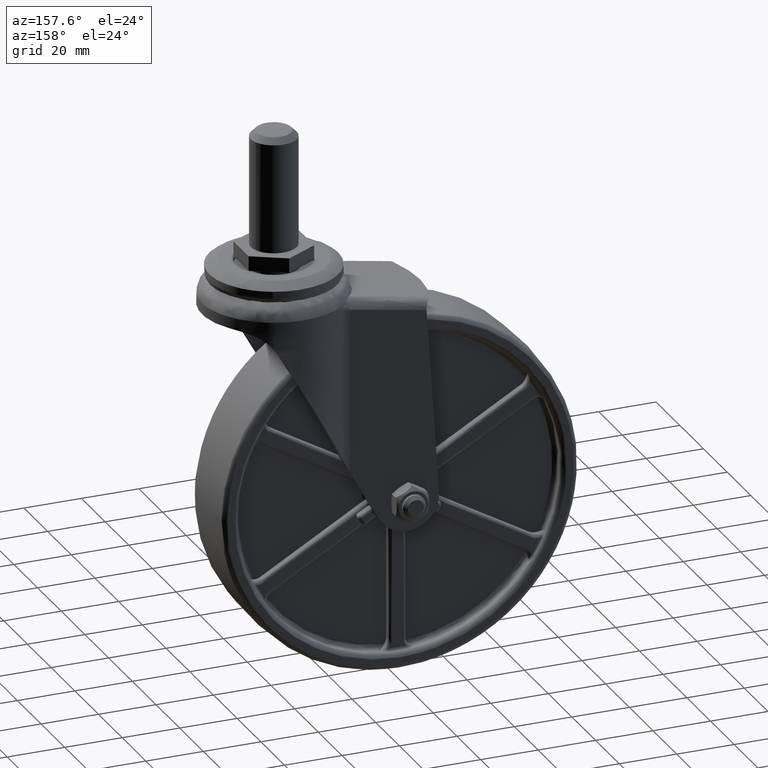
[diagram: clean part render]
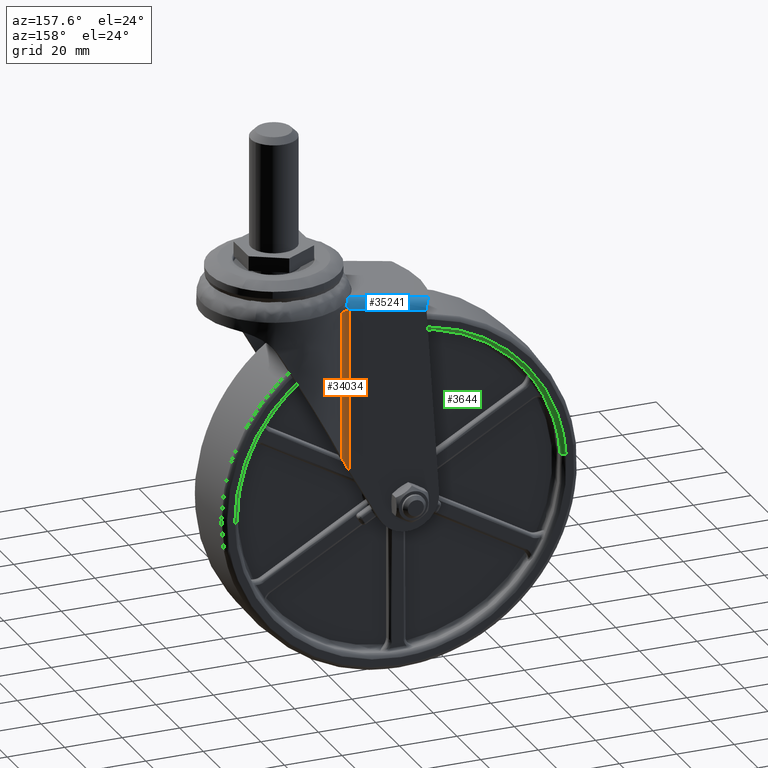
[diagram: same view with three faces highlighted in distinct colors, each labeled with its STEP entity id]
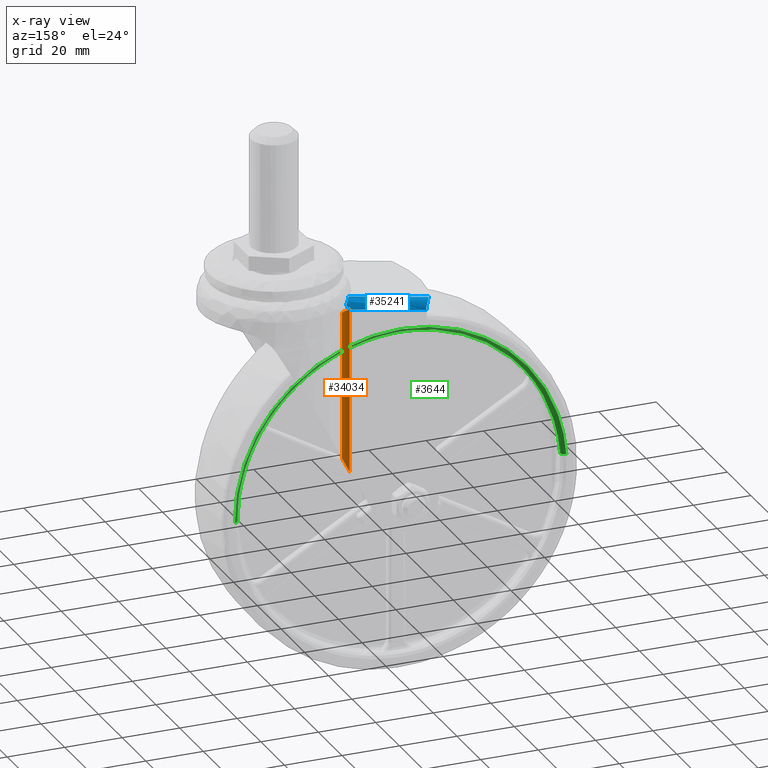
[diagram: x-ray of the same camera — body ghosted, the three highlighted faces saturated]
A machine part, auxiliary view with three faces highlighted in distinct colors.
The next image is the same camera in x-ray (body ghosted, the three faces saturated) — at least one of them is partly hidden behind the body in this view.
Their STEP definitions:

[orange] entity #34034 — the highlighted face is a freeform B-spline surface patch.
#33971=CARTESIAN_POINT('',(20.102633358060050,18.299990000000001,70.409649439843903));
#33972=CARTESIAN_POINT('',(21.875369773389576,18.299989999999937,70.409649439843818));
#33973=CARTESIAN_POINT('',(23.252194465050000,19.416658333333299,70.409649439843903));
#33974=CARTESIAN_POINT('',(20.102633358060050,18.299990000000001,51.269560469676343));
#33975=CARTESIAN_POINT('',(21.875369773389576,18.299989999999937,51.269560469676421));
#33976=CARTESIAN_POINT('',(23.252194465050000,19.416658333333299,51.269560469676343));
#33977=CARTESIAN_POINT('',(20.102633358060050,18.299990000000001,32.129471499508952));
#33978=CARTESIAN_POINT('',(21.875369773389576,18.299989999999937,32.129471499508973));
#33979=CARTESIAN_POINT('',(23.252194465050000,19.416658333333299,32.129471499508952));
#33980=CARTESIAN_POINT('',(20.102633358060050,18.299990000000001,12.989382529341460));
#33981=CARTESIAN_POINT('',(21.875369773389576,18.299989999999937,12.989382529341475));
#33982=CARTESIAN_POINT('',(23.252194465050000,19.416658333333299,12.989382529341460));
#33990=(BOUNDED_SURFACE()B_SPLINE_SURFACE(2,3,((#33971,#33974,#33977,#33980),(#33972,#33975,#33978,#33981),(#33973,#33976,#33979,#33982)),.UNSPECIFIED.,.F.,.F.,.U.)B_SPLINE_SURFACE_WITH_KNOTS((3,3),(4,4),(0.0,3.440550018456829),(0.0,57.420266910502740),.UNSPECIFIED.)GEOMETRIC_REPRESENTATION_ITEM()RATIONAL_B_SPLINE_SURFACE(((1.0,1.0,1.0,1.0),(0.942514279290593,0.942514279290593,0.942514279290593,0.942514279290593),(1.0,1.0,1.0,1.0)))REPRESENTATION_ITEM('')SURFACE());
#33991=CARTESIAN_POINT('',(20.102633358060100,18.299990000000001,70.409649439843790));
#33992=VERTEX_POINT('',#33991);
#33993=CARTESIAN_POINT('',(23.252194465050000,19.416658333333299,70.409649439843903));
#33994=VERTEX_POINT('',#33993);
#33995=CARTESIAN_POINT('',(20.102633358060089,18.299990000000012,70.409649439843861));
#33996=CARTESIAN_POINT('',(21.875369773389604,18.299989999999966,70.409649439843719));
#33997=CARTESIAN_POINT('',(23.252194465050003,19.416658333333302,70.409649439843776));
#34005=(BOUNDED_CURVE()B_SPLINE_CURVE(2,(#33995,#33996,#33997),.UNSPECIFIED.,.F.,.U.)CURVE()GEOMETRIC_REPRESENTATION_ITEM()QUASI_UNIFORM_CURVE()RATIONAL_B_SPLINE_CURVE((0.999999999999999,0.942514279290593,0.999999999999999))REPRESENTATION_ITEM(''));
#34006=EDGE_CURVE('',#33992,#33994,#34005,.T.);
#34007=ORIENTED_EDGE('',*,*,#34006,.T.);
#34008=CARTESIAN_POINT('',(23.252194465050049,19.416658333333299,18.940342810317151));
#34009=VERTEX_POINT('',#34008);
#34010=CARTESIAN_POINT('',(23.252194465050049,19.416658333333299,18.940342810317151));
#34011=CARTESIAN_POINT('',(23.252194465050088,19.416658333333292,36.096778353492567));
#34012=CARTESIAN_POINT('',(23.252194465050088,19.416658333333292,53.253213896668257));
#34013=CARTESIAN_POINT('',(23.252194465050088,19.416658333333292,70.409649439843960));
#34014=QUASI_UNIFORM_CURVE('',3,(#34010,#34011,#34012,#34013),.UNSPECIFIED.,.F.,.U.);
#34015=EDGE_CURVE('',#34009,#33994,#34014,.T.);
#34016=ORIENTED_EDGE('',*,*,#34015,.F.);
#34017=CARTESIAN_POINT('',(20.102633358060000,18.299990000000001,13.331849330000979));
#34018=VERTEX_POINT('',#34017);
#34019=CARTESIAN_POINT('',(20.102633358060000,18.299990000000001,13.331849330000979));
#34020=CARTESIAN_POINT('',(20.925261998470951,18.299989999999489,14.796722437630580));
#34021=CARTESIAN_POINT('',(21.704529371902009,18.563543107988579,16.184381173195810));
#34022=CARTESIAN_POINT('',(22.554949538779340,18.851160536510481,17.698743269830640));
#34023=CARTESIAN_POINT('',(23.252194465050049,19.416658333333299,18.940342810317151));
#34024=B_SPLINE_CURVE_WITH_KNOTS('',2,(#34019,#34020,#34021,#34022,#34023),.UNSPECIFIED.,.F.,.U.,(3,2,3),(0.0,0.500000000000000,1.0),.UNSPECIFIED.);
#34025=EDGE_CURVE('',#34018,#34009,#34024,.T.);
#34026=ORIENTED_EDGE('',*,*,#34025,.F.);
#34027=CARTESIAN_POINT('',(20.102633358060100,18.299990000000001,70.409649439843790));
#34028=CARTESIAN_POINT('',(20.102633358060000,18.299990000000001,13.331849330000979));
#34029=QUASI_UNIFORM_CURVE('',1,(#34027,#34028),.UNSPECIFIED.,.F.,.U.);
#34030=EDGE_CURVE('',#33992,#34018,#34029,.T.);
#34031=ORIENTED_EDGE('',*,*,#34030,.F.);
#34032=EDGE_LOOP('',(#34007,#34016,#34026,#34031));
#34033=FACE_OUTER_BOUND('',#34032,.T.);
#34034=ADVANCED_FACE('',(#34033),#33990,.T.);

[blue] entity #35241 — the highlighted face is a freeform B-spline surface patch.
#33991=CARTESIAN_POINT('',(20.102633358060100,18.299990000000001,70.409649439843790));
#33992=VERTEX_POINT('',#33991);
#34093=CARTESIAN_POINT('',(21.131566773162149,17.924383415659651,72.143692723831691));
#34094=VERTEX_POINT('',#34093);
#34128=CARTESIAN_POINT('',(21.131566773162149,17.924383415659651,72.143692723831691));
#34129=CARTESIAN_POINT('',(21.143986282343580,17.935730519261050,72.123506566035090));
#34130=CARTESIAN_POINT('',(21.169149494110300,17.958720926264540,72.082607319858454));
#34131=CARTESIAN_POINT('',(21.182631215756349,17.994695259357691,72.008567403839322));
#34132=CARTESIAN_POINT('',(21.177887789903991,18.030303676553281,71.927035834857904));
#34133=CARTESIAN_POINT('',(21.153945605203379,18.065455289741220,71.836936224412810));
#34134=CARTESIAN_POINT('',(21.111698372302300,18.099819316622209,71.738325167582360));
#34135=CARTESIAN_POINT('',(21.051100958029618,18.133097214771620,71.630787337165941));
#34136=CARTESIAN_POINT('',(20.972162617386861,18.164860880791760,71.514192068172846));
#34137=CARTESIAN_POINT('',(20.875030820414452,18.194688510955540,71.388212845244453));
#34138=CARTESIAN_POINT('',(20.736758407715289,18.226993066018721,71.228081263747896));
#34139=CARTESIAN_POINT('',(20.561147483037701,18.258120422252020,71.034072221560621));
#34140=CARTESIAN_POINT('',(20.361778673108130,18.281063148649199,70.824375810350872));
#34141=CARTESIAN_POINT('',(20.184310507594230,18.296303126143130,70.626610793087409));
#34142=CARTESIAN_POINT('',(20.127798544069421,18.298854053570309,70.476496444695826));
#34143=CARTESIAN_POINT('',(20.102633358060171,18.299990000000001,70.409649439843918));
#34144=B_SPLINE_CURVE_WITH_KNOTS('',3,(#34128,#34129,#34130,#34131,#34132,#34133,#34134,#34135,#34136,#34137,#34138,#34139,#34140,#34141,#34142,#34143),.UNSPECIFIED.,.F.,.U.,(4,1,1,1,1,1,1,1,1,1,1,1,1,4),(0.0,0.036353255469813,0.073655460328938,0.114182550217786,0.159729562385898,0.211572690367674,0.270581022960032,0.337344410941718,0.412269769383633,0.495644590621238,0.635175922634569,0.778446912807285,0.901340808169190,1.0),.UNSPECIFIED.);
#34145=EDGE_CURVE('',#34094,#33992,#34144,.T.);
#34208=CARTESIAN_POINT('',(19.034430391100599,14.999990000000000,73.572204257533613));
#34209=VERTEX_POINT('',#34208);
#34225=CARTESIAN_POINT('',(19.034430391100610,14.999989999999990,73.572204257533656));
#34226=CARTESIAN_POINT('',(19.083000719539982,15.061727307632200,73.579771116820993));
#34227=CARTESIAN_POINT('',(19.183786948659971,15.189835776983790,73.595472785686681));
#34228=CARTESIAN_POINT('',(19.330352211919539,15.398287319051761,73.602236242815650));
#34229=CARTESIAN_POINT('',(19.481459760425569,15.625518297552061,73.593337500516697));
#34230=CARTESIAN_POINT('',(19.636919916468639,15.870681097819620,73.563340526060301));
#34231=CARTESIAN_POINT('',(19.797812504448459,16.130971831722491,73.508258485607556));
#34232=CARTESIAN_POINT('',(19.964724439162470,16.403160413762340,73.423499879575473));
#34233=CARTESIAN_POINT('',(20.149768123224600,16.700031943907469,73.297582056102470));
#34234=CARTESIAN_POINT('',(20.367971316718769,17.041044112846681,73.103442028043716));
#34235=CARTESIAN_POINT('',(20.628981062907261,17.410526698287111,72.812070624182454));
#34236=CARTESIAN_POINT('',(20.888472209743028,17.715861553015230,72.476209641938254));
#34237=CARTESIAN_POINT('',(21.064047778115199,17.866466914307050,72.236048586632265));
#34238=CARTESIAN_POINT('',(21.131566773162231,17.924383415659701,72.143692723831805));
#34239=B_SPLINE_CURVE_WITH_KNOTS('',3,(#34225,#34226,#34227,#34228,#34229,#34230,#34231,#34232,#34233,#34234,#34235,#34236,#34237,#34238),.UNSPECIFIED.,.F.,.U.,(4,1,1,1,1,1,1,1,1,1,1,4),(0.0,0.058592058946326,0.121581897164829,0.189100785052935,0.261255109815772,0.338131843124667,0.419802693473031,0.506327269012270,0.613925405481092,0.752513221507892,0.904826971507833,1.0),.UNSPECIFIED.);
#34240=EDGE_CURVE('',#34209,#34094,#34239,.T.);
#34952=CARTESIAN_POINT('',(-6.553481613497070,18.232313581355498,66.384608539415197));
#34953=VERTEX_POINT('',#34952);
#34954=CARTESIAN_POINT('',(-6.623121693822720,18.144827391377550,66.712603229751195));
#34955=VERTEX_POINT('',#34954);
#34956=CARTESIAN_POINT('',(-6.553481613497070,18.232313581355498,66.384608539415197));
#34957=CARTESIAN_POINT('',(-6.549601611327642,18.220782981399989,66.442212407447940));
#34958=CARTESIAN_POINT('',(-6.554057577744760,18.207690852675601,66.498554225694349));
#34959=CARTESIAN_POINT('',(-6.572303436943645,18.185602167430272,66.581248146964242));
#34960=CARTESIAN_POINT('',(-6.580401706650641,18.177803880791171,66.608572966481901));
#34961=CARTESIAN_POINT('',(-6.594967707352803,18.165757122874940,66.648248977300781));
#34962=CARTESIAN_POINT('',(-6.600233457551394,18.161673869291249,66.661293697863272));
#34963=CARTESIAN_POINT('',(-6.611385544496693,18.153366095047449,66.687097915571584));
#34964=CARTESIAN_POINT('',(-6.617348915288367,18.149146446425220,66.699828977944165));
#34965=CARTESIAN_POINT('',(-6.623121693822720,18.144827391377550,66.712603229751195));
#34966=B_SPLINE_CURVE_WITH_KNOTS('',3,(#34956,#34957,#34958,#34959,#34960,#34961,#34962,#34963,#34964,#34965),.UNSPECIFIED.,.F.,.U.,(4,2,2,2,4),(0.0,0.499999999999941,0.749999999999972,0.874999999999986,1.0),.UNSPECIFIED.);
#34967=EDGE_CURVE('',#34953,#34955,#34966,.T.);
#35166=CARTESIAN_POINT('',(-9.422202567982023,14.877701716035320,68.552230659250995));
#35167=CARTESIAN_POINT('',(21.606115271019210,14.877701716035320,74.023360108958173));
#35168=CARTESIAN_POINT('',(-9.445376653610719,18.476546209405875,68.683657433397926));
#35169=CARTESIAN_POINT('',(21.582941185390517,18.476546209405875,74.154786883105146));
#35170=CARTESIAN_POINT('',(-8.820802185613292,18.295832654735779,65.141519510087335));
#35171=CARTESIAN_POINT('',(22.207515653387951,18.295832654735790,70.612648959794527));
#35179=(BOUNDED_SURFACE()B_SPLINE_SURFACE(1,2,((#35166,#35168,#35170),(#35167,#35169,#35171)),.UNSPECIFIED.,.F.,.F.,.U.)B_SPLINE_SURFACE_WITH_KNOTS((2,2),(3,3),(0.0,31.506979629496961),(0.0,5.808139007772184),.UNSPECIFIED.)GEOMETRIC_REPRESENTATION_ITEM()RATIONAL_B_SPLINE_SURFACE(((1.0,0.675590207615660,1.0),(1.0,0.675590207615660,1.0)))REPRESENTATION_ITEM('')SURFACE());
#35180=ORIENTED_EDGE('',*,*,#34240,.T.);
#35181=ORIENTED_EDGE('',*,*,#34145,.T.);
#35182=CARTESIAN_POINT('',(-6.599504122434451,18.299990000000001,65.701342289655898));
#35183=VERTEX_POINT('',#35182);
#35184=CARTESIAN_POINT('',(-6.599504122434451,18.299990000000001,65.701342289655898));
#35185=CARTESIAN_POINT('',(20.102633358060100,18.299990000000001,70.409649439843790));
#35186=QUASI_UNIFORM_CURVE('',1,(#35184,#35185),.UNSPECIFIED.,.F.,.U.);
#35187=EDGE_CURVE('',#35183,#33992,#35186,.T.);
#35188=ORIENTED_EDGE('',*,*,#35187,.F.);
#35189=CARTESIAN_POINT('',(-6.553481613497070,18.232313581355498,66.384608539415197));
#35190=CARTESIAN_POINT('',(-6.576254468304042,18.299990007078382,66.046514779219621));
#35191=CARTESIAN_POINT('',(-6.599504122434451,18.299990000000001,65.701342289655898));
#35199=(BOUNDED_CURVE()B_SPLINE_CURVE(2,(#35189,#35190,#35191),.UNSPECIFIED.,.F.,.U.)CURVE()GEOMETRIC_REPRESENTATION_ITEM()QUASI_UNIFORM_CURVE()RATIONAL_B_SPLINE_CURVE((1.0,0.994859786629306,1.0))REPRESENTATION_ITEM(''));
#35200=EDGE_CURVE('',#34953,#35183,#35199,.T.);
#35201=ORIENTED_EDGE('',*,*,#35200,.F.);
#35202=ORIENTED_EDGE('',*,*,#34967,.T.);
#35203=CARTESIAN_POINT('',(-8.684266168760072,14.999990000000000,68.684650319126703));
#35204=VERTEX_POINT('',#35203);
#35205=CARTESIAN_POINT('',(-8.684266168760072,14.999990000000000,68.684650319126703));
#35206=CARTESIAN_POINT('',(-8.604445609748275,15.171442991191650,68.698724836906507));
#35207=CARTESIAN_POINT('',(-8.521911242745949,15.340179017730000,68.699796842068153));
#35208=CARTESIAN_POINT('',(-8.351752827551959,15.672539350403460,68.677393875669310));
#35209=CARTESIAN_POINT('',(-8.264127573450104,15.836162603580521,68.653914668789682));
#35210=CARTESIAN_POINT('',(-8.128974365721609,16.077784787072201,68.599964984990834));
#35211=CARTESIAN_POINT('',(-8.083183906990819,16.157890482736079,68.578782167490402));
#35212=CARTESIAN_POINT('',(-7.990895250740997,16.315890629078389,68.530191538981455));
#35213=CARTESIAN_POINT('',(-7.944687678670103,16.393297295574769,68.502952460099650));
#35214=CARTESIAN_POINT('',(-7.805957707949497,16.620856044030859,68.412528825504523));
#35215=CARTESIAN_POINT('',(-7.713323576135491,16.766374923144038,68.340696514477401));
#35216=CARTESIAN_POINT('',(-7.574544925975506,16.975337978998908,68.215076600046231));
#35217=CARTESIAN_POINT('',(-7.528315112102669,17.043432940577350,68.170210546237456));
#35218=CARTESIAN_POINT('',(-7.459076345748241,17.143163476078531,68.098209405816988));
#35219=CARTESIAN_POINT('',(-7.436014518333263,17.176004489586159,68.073424250007577));
#35220=CARTESIAN_POINT('',(-7.389938054388204,17.240862564895441,68.022234209846289));
#35221=CARTESIAN_POINT('',(-7.366886286825191,17.272929212704501,67.995782017697664));
#35222=CARTESIAN_POINT('',(-7.252811472911608,17.429735537321591,67.860576846344173));
#35223=CARTESIAN_POINT('',(-7.164610156549971,17.544977970191351,67.742314298030934));
#35224=CARTESIAN_POINT('',(-6.995191271593185,17.754926243112841,67.484928133568332));
#35225=CARTESIAN_POINT('',(-6.913964346521785,17.849648400130960,67.345823551064001));
#35226=CARTESIAN_POINT('',(-6.798508406529216,17.974845886807380,67.119599411442124));
#35227=CARTESIAN_POINT('',(-6.761004546105876,18.013822932416119,67.041005512037231));
#35228=CARTESIAN_POINT('',(-6.689553705831147,18.084557812339732,66.880046011475784));
#35229=CARTESIAN_POINT('',(-6.655467388125388,18.116476032935921,66.797435907219182));
#35230=CARTESIAN_POINT('',(-6.623121693822720,18.144827391377550,66.712603229751195));
#35231=B_SPLINE_CURVE_WITH_KNOTS('',3,(#35205,#35206,#35207,#35208,#35209,#35210,#35211,#35212,#35213,#35214,#35215,#35216,#35217,#35218,#35219,#35220,#35221,#35222,#35223,#35224,#35225,#35226,#35227,#35228,#35229,#35230),.UNSPECIFIED.,.F.,.U.,(4,2,2,2,2,2,2,2,2,2,2,2,4),(0.0,0.125000000000004,0.250000000000007,0.312500000000010,0.375000000000013,0.500000000000017,0.562500000000018,0.593750000000019,0.625000000000020,0.750000000000014,0.875000000000007,0.937500000000004,1.0),.UNSPECIFIED.);
#35232=EDGE_CURVE('',#35204,#34955,#35231,.T.);
#35233=ORIENTED_EDGE('',*,*,#35232,.F.);
#35234=CARTESIAN_POINT('',(19.034430391100599,14.999990000000000,73.572204257533613));
#35235=CARTESIAN_POINT('',(-8.684266168760072,14.999990000000000,68.684650319126703));
#35236=QUASI_UNIFORM_CURVE('',1,(#35234,#35235),.UNSPECIFIED.,.F.,.U.);
#35237=EDGE_CURVE('',#34209,#35204,#35236,.T.);
#35238=ORIENTED_EDGE('',*,*,#35237,.F.);
#35239=EDGE_LOOP('',(#35180,#35181,#35188,#35201,#35202,#35233,#35238));
#35240=FACE_OUTER_BOUND('',#35239,.T.);
#35241=ADVANCED_FACE('',(#35240),#35179,.T.);

[green] entity #3644 — the highlighted face is a freeform B-spline surface patch.
#3314=CARTESIAN_POINT('',(-57.602042649739822,12.500000000000000,4.026579740042918));
#3315=VERTEX_POINT('',#3314);
#3333=CARTESIAN_POINT('',(-56.105694150497627,11.000000003074760,3.921979863189637));
#3334=VERTEX_POINT('',#3333);
#3335=CARTESIAN_POINT('',(-56.105694150497627,11.000000003074756,3.921979863189637));
#3336=CARTESIAN_POINT('',(-56.105694156632154,12.499999976948073,3.921979863618553));
#3337=CARTESIAN_POINT('',(-57.602042649739815,12.500000000000002,4.026579740042917));
#3345=(BOUNDED_CURVE()B_SPLINE_CURVE(2,(#3335,#3336,#3337),.UNSPECIFIED.,.F.,.U.)B_SPLINE_CURVE_WITH_KNOTS((3,3),(-1.725134639077616,-0.274865372477945),.UNSPECIFIED.)CURVE()GEOMETRIC_REPRESENTATION_ITEM()RATIONAL_B_SPLINE_CURVE((0.863472073906405,0.610566963342673,0.863472069876173))REPRESENTATION_ITEM(''));
#3346=EDGE_CURVE('',#3334,#3315,#3345,.T.);
#3438=CARTESIAN_POINT('',(56.238166320184853,11.000000003283811,-0.706746842705729));
#3439=VERTEX_POINT('',#3438);
#3453=CARTESIAN_POINT('',(57.738047886479308,12.500000000000000,-0.725595902538041));
#3454=VERTEX_POINT('',#3453);
#3455=CARTESIAN_POINT('',(56.238166320184845,11.000000003283811,-0.706746842705729));
#3456=CARTESIAN_POINT('',(56.238166326751951,12.499999999977659,-0.706746842788258));
#3457=CARTESIAN_POINT('',(57.738047886479301,12.500000000000004,-0.725595902538041));
#3465=(BOUNDED_CURVE()B_SPLINE_CURVE(2,(#3455,#3456,#3457),.UNSPECIFIED.,.F.,.U.)B_SPLINE_CURVE_WITH_KNOTS((3,3),(-1.725134638791772,-0.274865356733459),.UNSPECIFIED.)CURVE()GEOMETRIC_REPRESENTATION_ITEM()RATIONAL_B_SPLINE_CURVE((0.883342148051031,0.624617224931319,0.883342149647610))REPRESENTATION_ITEM(''));
#3466=EDGE_CURVE('',#3439,#3454,#3465,.T.);
#3484=CARTESIAN_POINT('',(56.241796991430832,10.895694247818856,-0.706792469467907));
#3485=CARTESIAN_POINT('',(56.948589460898745,10.895694247818859,55.535004521962939));
#3486=CARTESIAN_POINT('',(0.706792469467910,10.895694247818856,56.241796991430832));
#3487=CARTESIAN_POINT('',(-52.405341985590930,10.895694247818856,56.909258891268827));
#3488=CARTESIAN_POINT('',(-56.109316269492929,10.895694247818859,3.922233061692604));
#3489=CARTESIAN_POINT('',(56.121869534411850,12.616307928402593,-0.705285337263074));
#3490=CARTESIAN_POINT('',(56.827154871674921,12.616307928402593,55.416584197148772));
#3491=CARTESIAN_POINT('',(0.705285337263077,12.616307928402593,56.121869534411850));
#3492=CARTESIAN_POINT('',(-52.293595211221330,12.616307928402591,56.787908168767814));
#3493=CARTESIAN_POINT('',(-55.989671308356627,12.616307928402595,3.913869469807437));
#3494=CARTESIAN_POINT('',(57.842347217172041,12.496368915608143,-0.726906635569879));
#3495=CARTESIAN_POINT('',(58.569253852741909,12.496368915608144,57.115440581602151));
#3496=CARTESIAN_POINT('',(0.726906635569882,12.496368915608143,57.842347217172041));
#3497=CARTESIAN_POINT('',(-53.896712930901636,12.496368915608144,58.528803998959148));
#3498=CARTESIAN_POINT('',(-57.706096308989231,12.496368915608143,4.033853446319683));
#3506=(BOUNDED_SURFACE()B_SPLINE_SURFACE(2,2,((#3484,#3489,#3494),(#3485,#3490,#3495),(#3486,#3491,#3496),(#3487,#3492,#3497),(#3488,#3493,#3498)),.UNSPECIFIED.,.F.,.F.,.U.)B_SPLINE_SURFACE_WITH_KNOTS((3,2,3),(3,3),(0.0,95.843906219310156,187.854056189847910),(0.0,2.733563277773639),.UNSPECIFIED.)GEOMETRIC_REPRESENTATION_ITEM()RATIONAL_B_SPLINE_SURFACE(((0.910479819627220,0.597479302697768,0.910480322538928),(0.643806454591912,0.422481666556202,0.643806810204191),(0.910479819627220,0.597479302697768,0.910480322538928),(0.654473389193324,0.429481572001864,0.654473750697581),(0.889999305192508,0.584039484242096,0.889999796791621)))REPRESENTATION_ITEM('')SURFACE());
#3507=CARTESIAN_POINT('',(0.0,12.500000000000000,57.742607000000000));
#3508=VERTEX_POINT('',#3507);
#3509=CARTESIAN_POINT('',(0.0,12.500000000000000,57.742607000000000));
#3510=CARTESIAN_POINT('',(-53.847108684184654,12.499999999999998,57.742607000000000));
#3511=CARTESIAN_POINT('',(-57.602042649739822,12.500000000000005,4.026579740042918));
#3519=(BOUNDED_CURVE()B_SPLINE_CURVE(2,(#3509,#3510,#3511),.UNSPECIFIED.,.F.,.U.)B_SPLINE_CURVE_WITH_KNOTS((3,3),(0.500000000000000,0.737833686533380),.UNSPECIFIED.)CURVE()GEOMETRIC_REPRESENTATION_ITEM()RATIONAL_B_SPLINE_CURVE((1.0,0.721360504035875,0.972879876383355))REPRESENTATION_ITEM(''));
#3520=EDGE_CURVE('',#3508,#3315,#3519,.T.);
#3521=ORIENTED_EDGE('',*,*,#3520,.F.);
#3522=CARTESIAN_POINT('',(57.738047886479308,12.499999999999998,-0.725595902538041));
#3523=CARTESIAN_POINT('',(57.742607000000000,12.499999999999998,-0.362812274338791));
#3524=CARTESIAN_POINT('',(57.742607000000000,12.500000000000000,1.855278E-015));
#3525=CARTESIAN_POINT('',(57.742607000000000,12.500000000000000,57.742607000000000));
#3526=CARTESIAN_POINT('',(0.0,12.500000000000000,57.742607000000000));
#3534=(BOUNDED_CURVE()B_SPLINE_CURVE(2,(#3522,#3523,#3524,#3525,#3526),.UNSPECIFIED.,.F.,.U.)B_SPLINE_CURVE_WITH_KNOTS((3,2,3),(0.247784295921683,0.250000000000000,0.500000000000000),.UNSPECIFIED.)CURVE()GEOMETRIC_REPRESENTATION_ITEM()RATIONAL_B_SPLINE_CURVE((0.994854295643908,0.997404141202255,1.0,0.707106781186548,1.0))REPRESENTATION_ITEM(''));
#3535=EDGE_CURVE('',#3454,#3508,#3534,.T.);
#3536=ORIENTED_EDGE('',*,*,#3535,.F.);
#3537=ORIENTED_EDGE('',*,*,#3466,.F.);
#3538=CARTESIAN_POINT('',(50.125580031458398,11.0,25.507980489766400));
#3539=VERTEX_POINT('',#3538);
#3540=CARTESIAN_POINT('',(56.238166320184845,11.000000003283809,-0.706746842705729));
#3541=CARTESIAN_POINT('',(56.412353262729781,10.999999999999996,13.153879981098211));
#3542=CARTESIAN_POINT('',(50.125580031458433,11.0,25.507980489766421));
#3550=(BOUNDED_CURVE()B_SPLINE_CURVE(2,(#3540,#3541,#3542),.UNSPECIFIED.,.F.,.U.)B_SPLINE_CURVE_WITH_KNOTS((3,3),(0.486899397519960,1.0),.UNSPECIFIED.)CURVE()GEOMETRIC_REPRESENTATION_ITEM()RATIONAL_B_SPLINE_CURVE((0.945656612163160,0.944194439227447,1.0))REPRESENTATION_ITEM(''));
#3551=EDGE_CURVE('',#3439,#3539,#3550,.T.);
#3552=ORIENTED_EDGE('',*,*,#3551,.T.);
#3553=CARTESIAN_POINT('',(47.153349119104803,11.0,30.656035441789751));
#3554=VERTEX_POINT('',#3553);
#3555=CARTESIAN_POINT('',(50.125580031458433,11.0,25.507980489766421));
#3556=CARTESIAN_POINT('',(48.775683538732729,11.000000000000002,28.160654020995345));
#3557=CARTESIAN_POINT('',(47.153349119104803,11.0,30.656035441789740));
#3565=(BOUNDED_CURVE()B_SPLINE_CURVE(2,(#3555,#3556,#3557),.UNSPECIFIED.,.F.,.U.)CURVE()GEOMETRIC_REPRESENTATION_ITEM()QUASI_UNIFORM_CURVE()RATIONAL_B_SPLINE_CURVE((1.0,0.998602641793546,1.0))REPRESENTATION_ITEM(''));
#3566=EDGE_CURVE('',#3539,#3554,#3565,.T.);
#3567=ORIENTED_EDGE('',*,*,#3566,.T.);
#3568=CARTESIAN_POINT('',(2.972230912353680,11.0,56.164015931556207));
#3569=VERTEX_POINT('',#3568);
#3570=CARTESIAN_POINT('',(47.153349119104803,11.0,30.656035441789740));
#3571=CARTESIAN_POINT('',(31.553059736877195,10.999999999999998,54.651502598527081));
#3572=CARTESIAN_POINT('',(2.972230912353691,11.0,56.164015931556193));
#3580=(BOUNDED_CURVE()B_SPLINE_CURVE(2,(#3570,#3571,#3572),.UNSPECIFIED.,.F.,.U.)CURVE()GEOMETRIC_REPRESENTATION_ITEM()QUASI_UNIFORM_CURVE()RATIONAL_B_SPLINE_CURVE((1.0,0.891238559255591,1.0))REPRESENTATION_ITEM(''));
#3581=EDGE_CURVE('',#3554,#3569,#3580,.T.);
#3582=ORIENTED_EDGE('',*,*,#3581,.T.);
#3583=CARTESIAN_POINT('',(-2.972230912353640,11.0,56.164015931556207));
#3584=VERTEX_POINT('',#3583);
#3585=CARTESIAN_POINT('',(2.972230912353691,11.0,56.164015931556193));
#3586=CARTESIAN_POINT('',(-1.734723E-015,10.999999999999998,56.321308041990683));
#3587=CARTESIAN_POINT('',(-2.972230912353628,11.0,56.164015931556200));
#3595=(BOUNDED_CURVE()B_SPLINE_CURVE(2,(#3585,#3586,#3587),.UNSPECIFIED.,.F.,.U.)CURVE()GEOMETRIC_REPRESENTATION_ITEM()QUASI_UNIFORM_CURVE()RATIONAL_B_SPLINE_CURVE((1.0,0.998602641793546,1.0))REPRESENTATION_ITEM(''));
#3596=EDGE_CURVE('',#3569,#3584,#3595,.T.);
#3597=ORIENTED_EDGE('',*,*,#3596,.T.);
#3598=CARTESIAN_POINT('',(-47.153349119104803,11.0,30.656035441789800));
#3599=VERTEX_POINT('',#3598);
#3600=CARTESIAN_POINT('',(-2.972230912353628,11.0,56.164015931556200));
#3601=CARTESIAN_POINT('',(-31.553059736877142,11.0,54.651502598527109));
#3602=CARTESIAN_POINT('',(-47.153349119104767,11.0,30.656035441789768));
#3610=(BOUNDED_CURVE()B_SPLINE_CURVE(2,(#3600,#3601,#3602),.UNSPECIFIED.,.F.,.U.)CURVE()GEOMETRIC_REPRESENTATION_ITEM()QUASI_UNIFORM_CURVE()RATIONAL_B_SPLINE_CURVE((1.0,0.891238559255591,1.0))REPRESENTATION_ITEM(''));
#3611=EDGE_CURVE('',#3584,#3599,#3610,.T.);
#3612=ORIENTED_EDGE('',*,*,#3611,.T.);
#3613=CARTESIAN_POINT('',(-50.125580031458398,11.0,25.507980489766449));
#3614=VERTEX_POINT('',#3613);
#3615=CARTESIAN_POINT('',(-47.153349119104767,11.0,30.656035441789768));
#3616=CARTESIAN_POINT('',(-48.775683538732736,10.999999999999998,28.160654020995338));
#3617=CARTESIAN_POINT('',(-50.125580031458412,11.0,25.507980489766481));
#3625=(BOUNDED_CURVE()B_SPLINE_CURVE(2,(#3615,#3616,#3617),.UNSPECIFIED.,.F.,.U.)CURVE()GEOMETRIC_REPRESENTATION_ITEM()QUASI_UNIFORM_CURVE()RATIONAL_B_SPLINE_CURVE((1.0,0.998602641793546,1.0))REPRESENTATION_ITEM(''));
#3626=EDGE_CURVE('',#3599,#3614,#3625,.T.);
#3627=ORIENTED_EDGE('',*,*,#3626,.T.);
#3628=CARTESIAN_POINT('',(-50.125580031458412,11.0,25.507980489766481));
#3629=CARTESIAN_POINT('',(-55.308755015236741,11.000000000000007,15.322554302433979));
#3630=CARTESIAN_POINT('',(-56.105694150497627,11.000000003074758,3.921979863189636));
#3638=(BOUNDED_CURVE()B_SPLINE_CURVE(2,(#3628,#3629,#3630),.UNSPECIFIED.,.F.,.U.)B_SPLINE_CURVE_WITH_KNOTS((3,3),(0.0,0.427214556088561),.UNSPECIFIED.)CURVE()GEOMETRIC_REPRESENTATION_ITEM()RATIONAL_B_SPLINE_CURVE((1.0,0.953535529372825,0.946771655131407))REPRESENTATION_ITEM(''));
#3639=EDGE_CURVE('',#3614,#3334,#3638,.T.);
#3640=ORIENTED_EDGE('',*,*,#3639,.T.);
#3641=ORIENTED_EDGE('',*,*,#3346,.T.);
#3642=EDGE_LOOP('',(#3521,#3536,#3537,#3552,#3567,#3582,#3597,#3612,#3627,#3640,#3641));
#3643=FACE_OUTER_BOUND('',#3642,.T.);
#3644=ADVANCED_FACE('',(#3643),#3506,.T.);